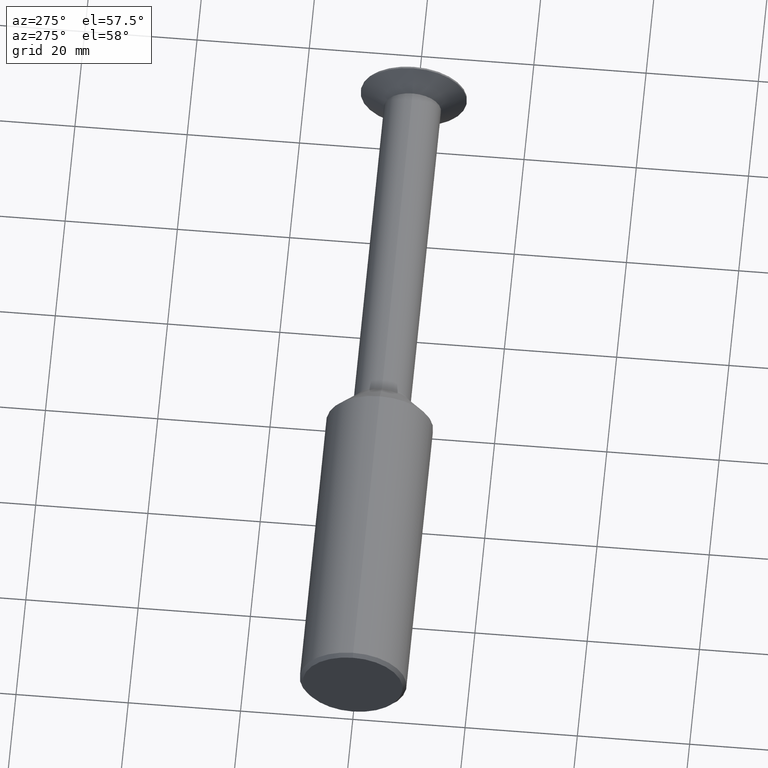
[diagram: clean part render]
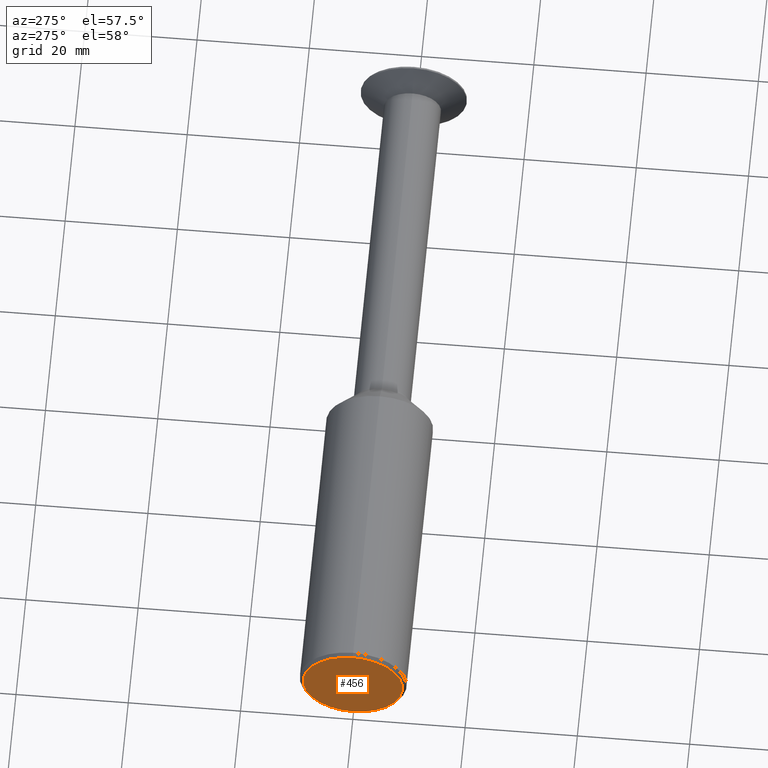
[diagram: same view with one face highlighted and labeled with its STEP entity id]
A machine part, auxiliary view. The second image highlights one B-rep face of the part: STEP entity #456.
In plain terms, the highlighted planar face has unit normal (1, 0, 0).
Its self-contained STEP definition (entity closure, byte-faithful):
#56 = FACE_OUTER_BOUND ( 'NONE', #331, .T. ) ;
#74 = VERTEX_POINT ( 'NONE', #183 ) ;
#107 = ORIENTED_EDGE ( 'NONE', *, *, #122, .T. ) ;
#117 = ORIENTED_EDGE ( 'NONE', *, *, #498, .T. ) ;
#122 = EDGE_CURVE ( 'NONE', #74, #312, #186, .T. ) ;
#183 = CARTESIAN_POINT ( 'NONE',  ( 0.0000000000000000000, 4.437507676710431854E-17, 0.3498499999999995502 ) ) ;
#186 = CIRCLE ( 'NONE', #346, 0.3498499999999995502 ) ;
#241 = CARTESIAN_POINT ( 'NONE',  ( 0.0000000000000000000, 0.0000000000000000000, -0.3498499999999995502 ) ) ;
#242 = DIRECTION ( 'NONE',  ( -1.000000000000000000, -0.0000000000000000000, -0.0000000000000000000 ) ) ;
#263 = DIRECTION ( 'NONE',  ( 0.0000000000000000000, 0.0000000000000000000, -1.000000000000000000 ) ) ;
#284 = DIRECTION ( 'NONE',  ( 1.000000000000000000, 0.0000000000000000000, 0.0000000000000000000 ) ) ;
#291 = DIRECTION ( 'NONE',  ( 0.0000000000000000000, 0.0000000000000000000, -1.000000000000000000 ) ) ;
#294 = CARTESIAN_POINT ( 'NONE',  ( 0.0000000000000000000, 0.0000000000000000000, 0.0000000000000000000 ) ) ;
#312 = VERTEX_POINT ( 'NONE', #241 ) ;
#331 = EDGE_LOOP ( 'NONE', ( #117, #107 ) ) ;
#340 = AXIS2_PLACEMENT_3D ( 'NONE', #479, #453, #441 ) ;
#346 = AXIS2_PLACEMENT_3D ( 'NONE', #294, #242, #291 ) ;
#360 = CIRCLE ( 'NONE', #340, 0.3498499999999995502 ) ;
#438 = PLANE ( 'NONE',  #457 ) ;
#441 = DIRECTION ( 'NONE',  ( 0.0000000000000000000, 0.0000000000000000000, -1.000000000000000000 ) ) ;
#449 = CARTESIAN_POINT ( 'NONE',  ( 0.0000000000000000000, 0.0000000000000000000, 0.0000000000000000000 ) ) ;
#453 = DIRECTION ( 'NONE',  ( -1.000000000000000000, -0.0000000000000000000, -0.0000000000000000000 ) ) ;
#456 = ADVANCED_FACE ( 'NONE', ( #56 ), #438, .F. ) ;
#457 = AXIS2_PLACEMENT_3D ( 'NONE', #449, #284, #263 ) ;
#479 = CARTESIAN_POINT ( 'NONE',  ( 0.0000000000000000000, 0.0000000000000000000, 0.0000000000000000000 ) ) ;
#498 = EDGE_CURVE ( 'NONE', #312, #74, #360, .T. ) ;